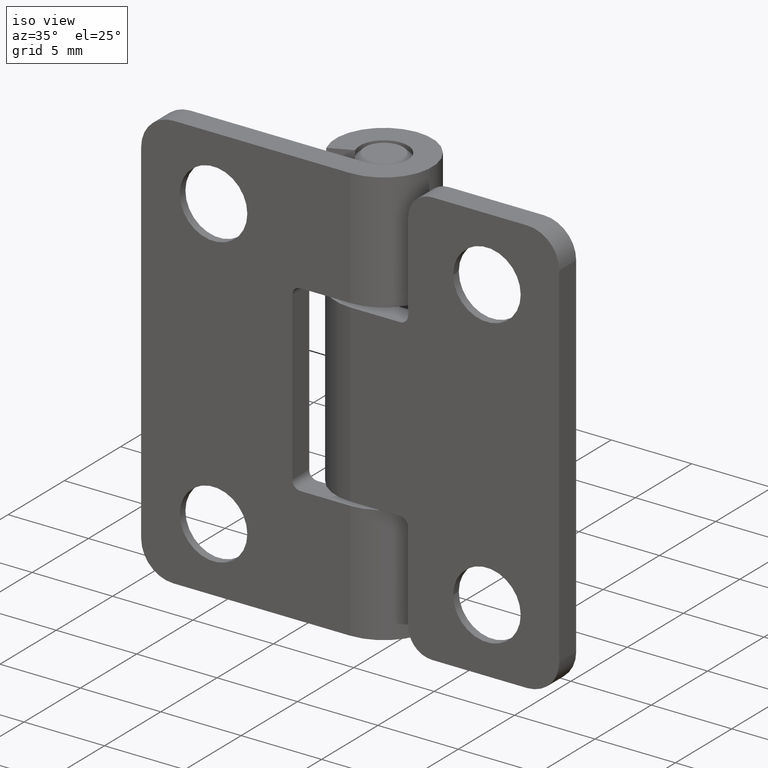
[diagram: clean part render]
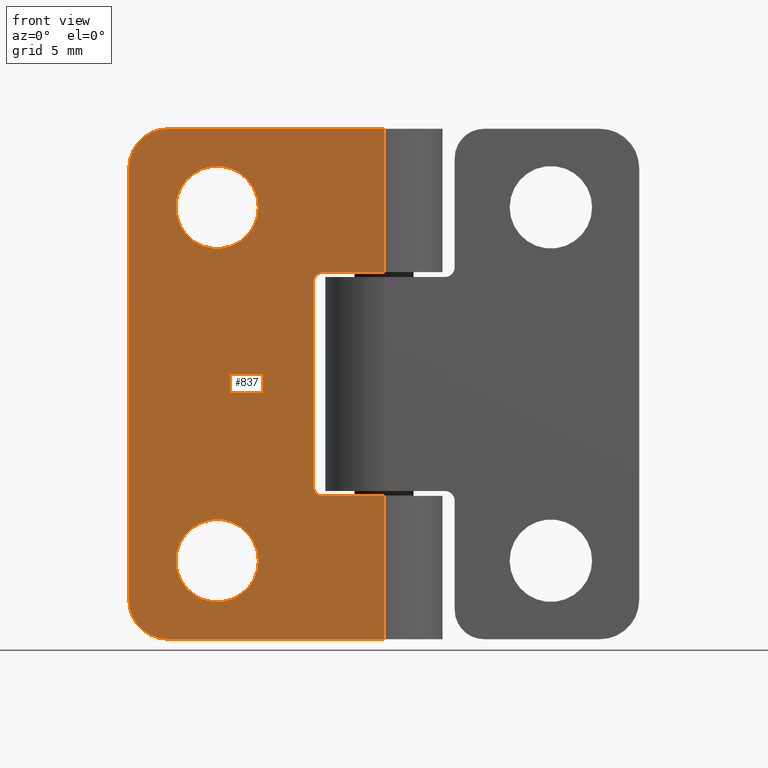
[diagram: tour spotlight — one face highlighted and labeled with its STEP entity id]
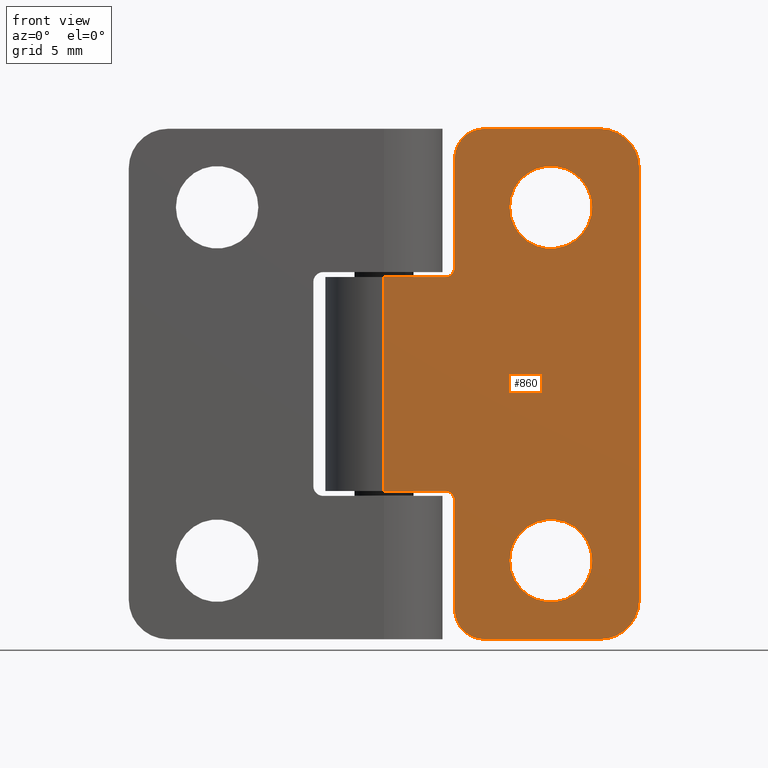
[diagram: tour spotlight — one face highlighted and labeled with its STEP entity id]
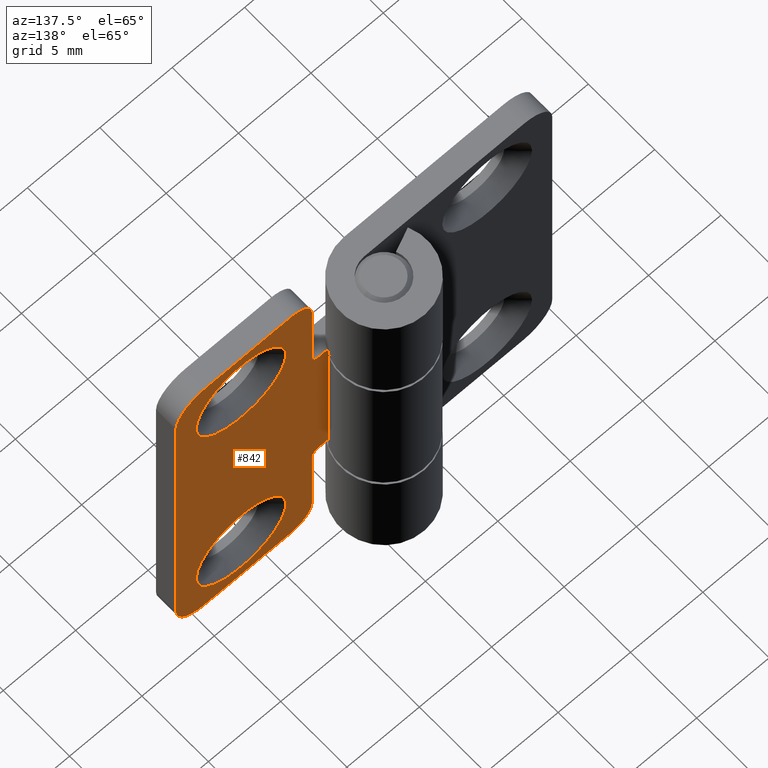
[diagram: tour spotlight — one face highlighted and labeled with its STEP entity id]
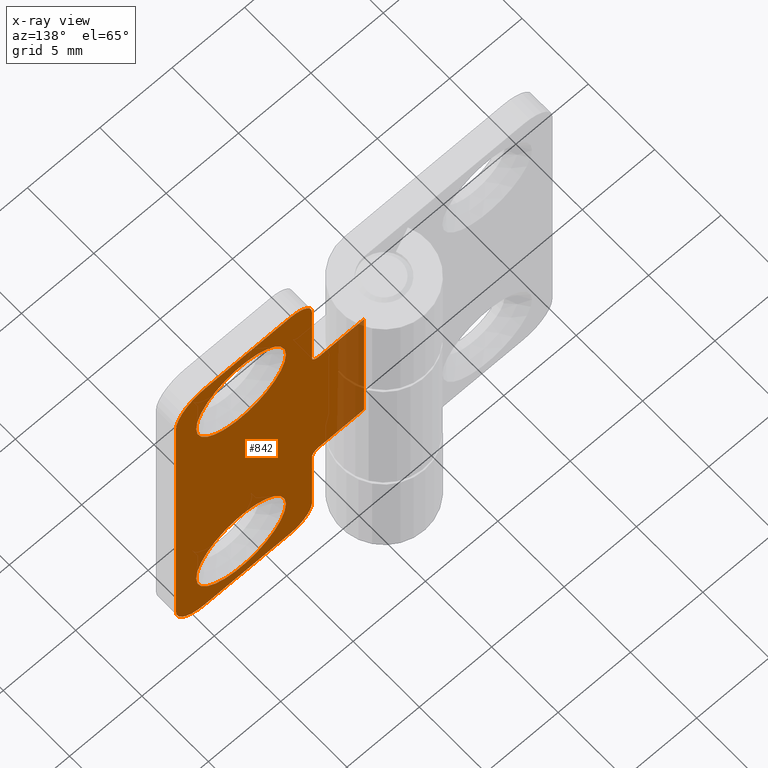
[diagram: x-ray of the same camera — body ghosted, this tour face saturated]
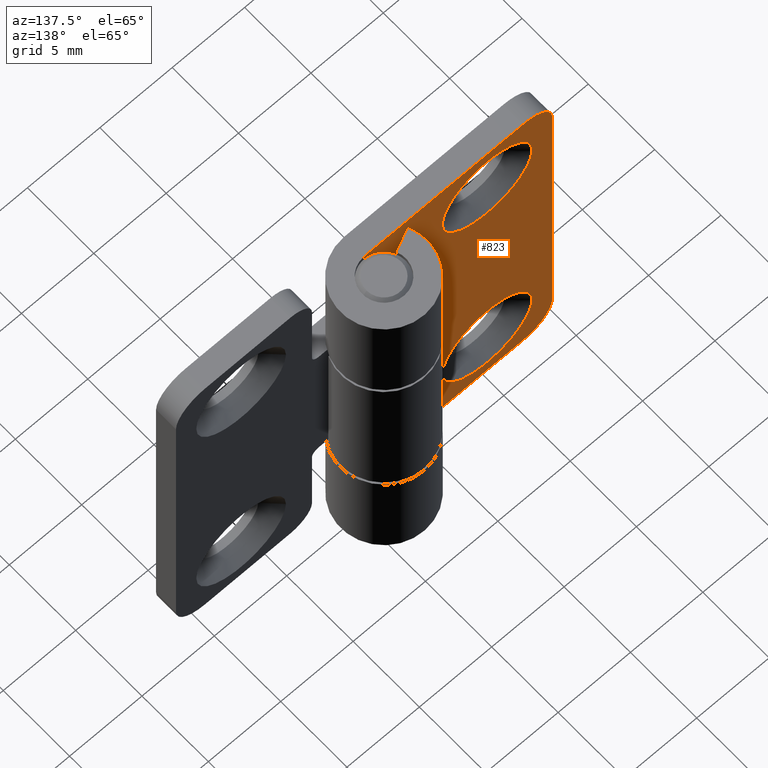
[diagram: tour spotlight — one face highlighted and labeled with its STEP entity id]
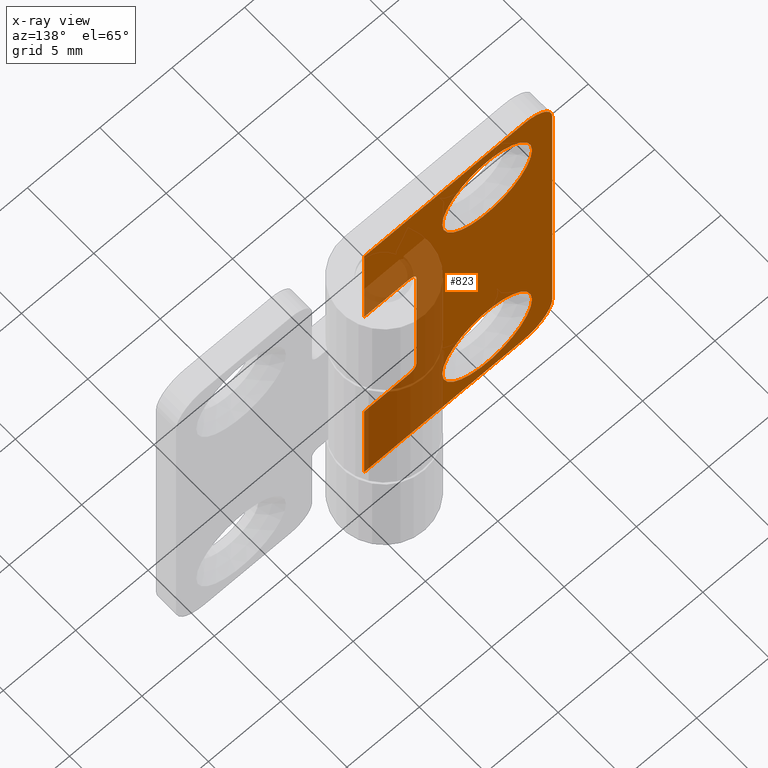
[diagram: x-ray of the same camera — body ghosted, this tour face saturated]
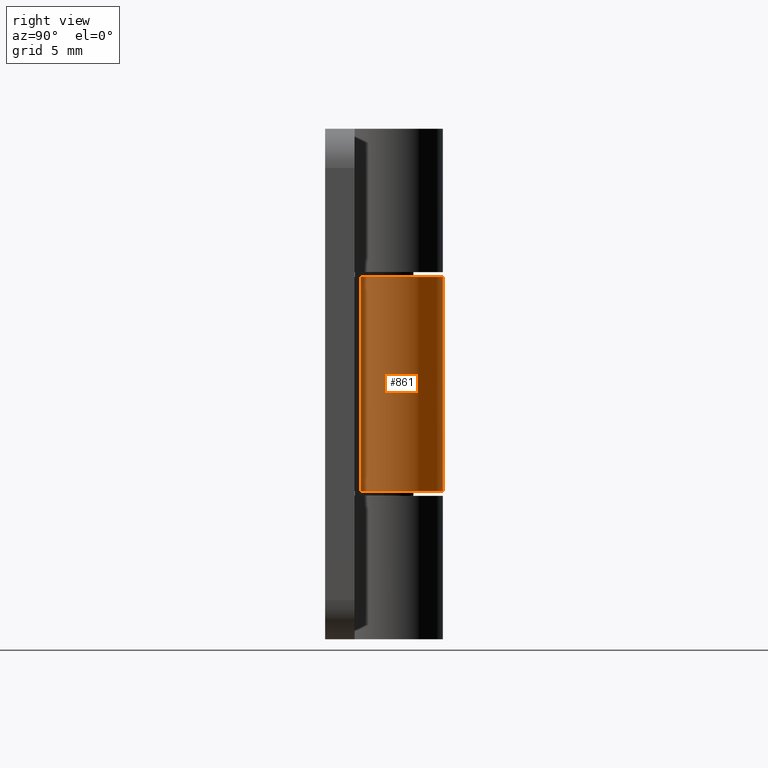
[diagram: tour spotlight — one face highlighted and labeled with its STEP entity id]
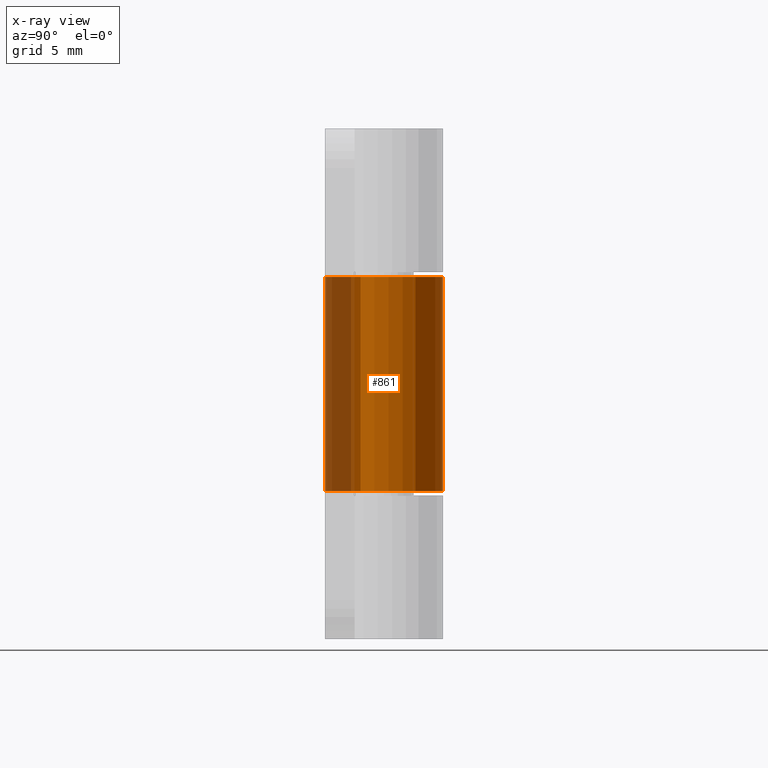
[diagram: x-ray of the same camera — body ghosted, this tour face saturated]
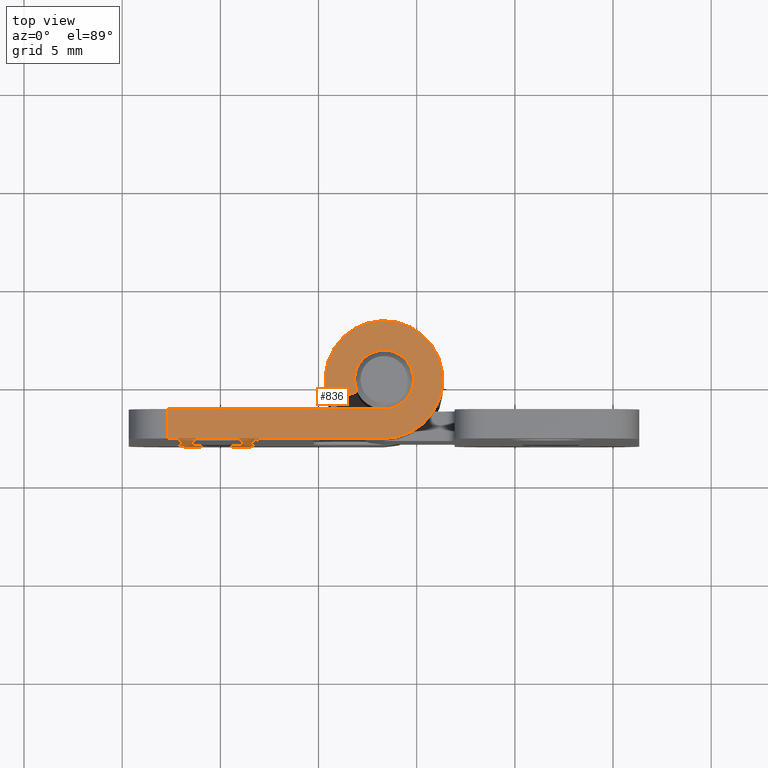
[diagram: tour spotlight — one face highlighted and labeled with its STEP entity id]
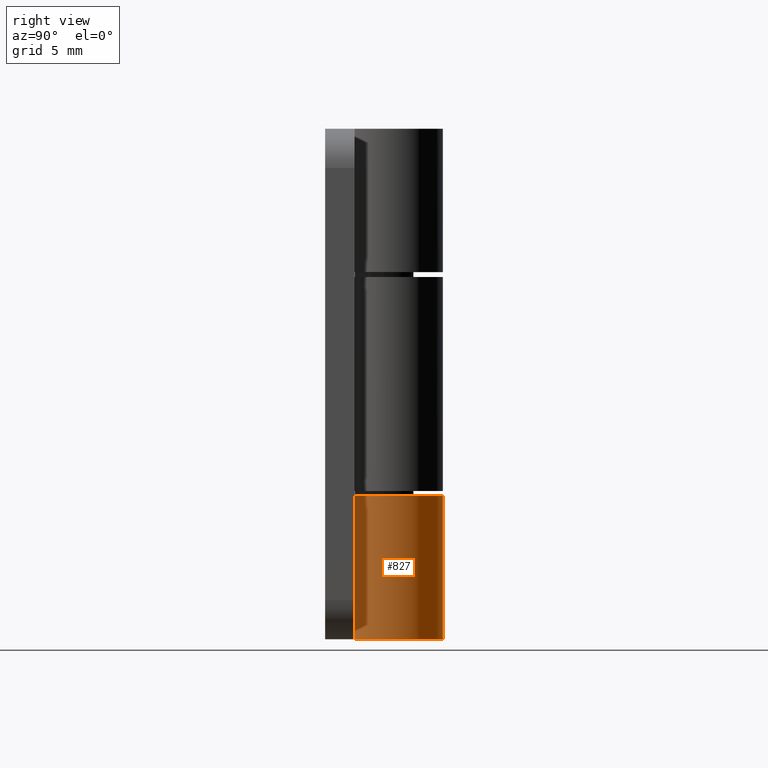
[diagram: tour spotlight — one face highlighted and labeled with its STEP entity id]
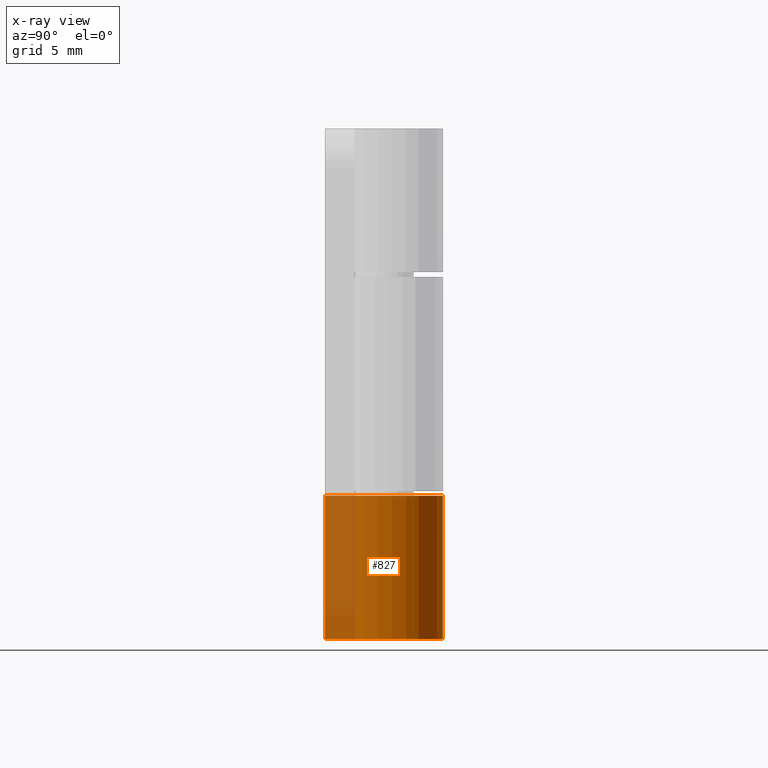
[diagram: x-ray of the same camera — body ghosted, this tour face saturated]
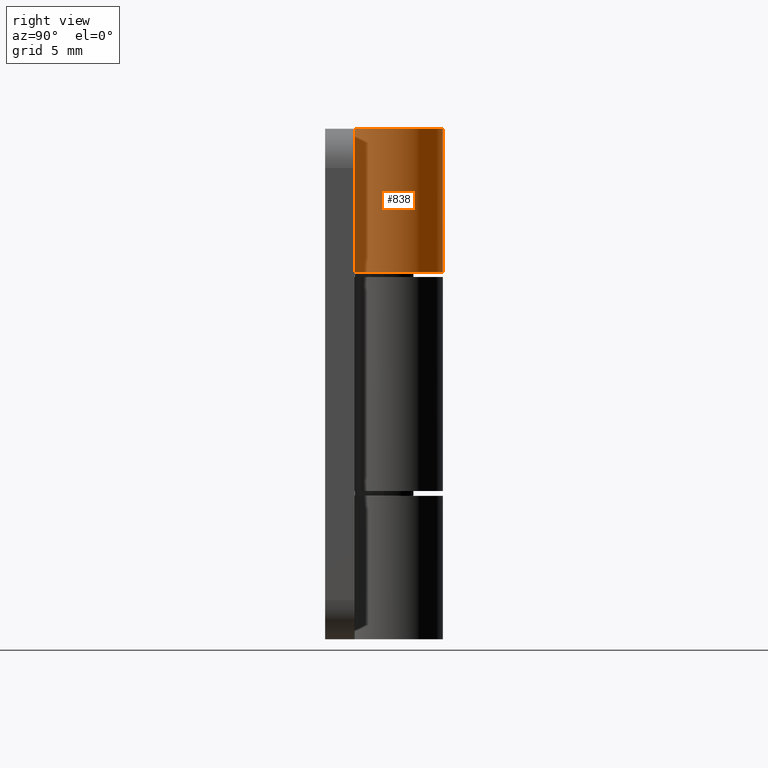
[diagram: tour spotlight — one face highlighted and labeled with its STEP entity id]
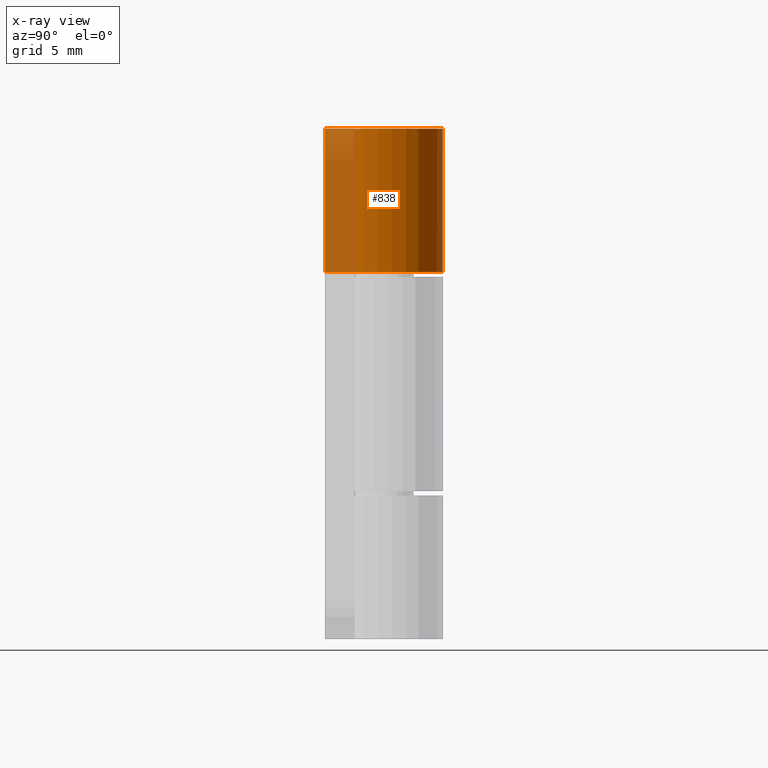
[diagram: x-ray of the same camera — body ghosted, this tour face saturated]
A machine part: a face-by-face anatomy tour. The part has 49 B-rep faces; the first image is the clean iso view, then the 8 largest visible faces are spotlighted one at a time (largest first), each with its STEP entity span.

Face 1 — front view, entity #837. In plain terms, the highlighted planar face has unit normal (0, -1, -0).
Definition (entity closure, byte-faithful):
#53=FACE_BOUND('',#163,.T.);
#54=FACE_BOUND('',#164,.T.);
#74=PLANE('',#912);
#107=FACE_OUTER_BOUND('',#162,.T.);
#162=EDGE_LOOP('',(#657,#658,#659,#660,#661,#662,#663,#664,#665,#666,#667,
#668));
#163=EDGE_LOOP('',(#669));
#164=EDGE_LOOP('',(#670));
#207=LINE('',#1258,#271);
#214=LINE('',#1284,#278);
#223=LINE('',#1312,#287);
#226=LINE('',#1319,#290);
#227=LINE('',#1322,#291);
#234=LINE('',#1354,#298);
#235=LINE('',#1357,#299);
#236=LINE('',#1358,#300);
#271=VECTOR('',#986,3.1);
#278=VECTOR('',#1009,3.1);
#287=VECTOR('',#1034,22.);
#290=VECTOR('',#1043,10.4);
#291=VECTOR('',#1046,7.3);
#298=VECTOR('',#1085,11.);
#299=VECTOR('',#1090,11.);
#300=VECTOR('',#1091,7.3);
#333=CIRCLE('',#872,0.5);
#338=CIRCLE('',#879,0.5);
#342=CIRCLE('',#885,2.);
#346=CIRCLE('',#892,2.);
#351=CIRCLE('',#905,2.1);
#353=CIRCLE('',#909,2.1);
#381=VERTEX_POINT('',#1248);
#382=VERTEX_POINT('',#1249);
#385=VERTEX_POINT('',#1257);
#391=VERTEX_POINT('',#1270);
#392=VERTEX_POINT('',#1272);
#396=VERTEX_POINT('',#1282);
#399=VERTEX_POINT('',#1289);
#400=VERTEX_POINT('',#1291);
#407=VERTEX_POINT('',#1311);
#408=VERTEX_POINT('',#1315);
#409=VERTEX_POINT('',#1321);
#415=VERTEX_POINT('',#1344);
#417=VERTEX_POINT('',#1350);
#418=VERTEX_POINT('',#1353);
#461=EDGE_CURVE('',#381,#382,#333,.T.);
#465=EDGE_CURVE('',#385,#382,#207,.T.);
#472=EDGE_CURVE('',#391,#392,#338,.T.);
#478=EDGE_CURVE('',#391,#396,#214,.T.);
#481=EDGE_CURVE('',#399,#400,#342,.T.);
#492=EDGE_CURVE('',#407,#400,#223,.T.);
#494=EDGE_CURVE('',#407,#408,#346,.T.);
#496=EDGE_CURVE('',#381,#392,#226,.T.);
#497=EDGE_CURVE('',#385,#409,#227,.T.);
#508=EDGE_CURVE('',#415,#415,#351,.T.);
#510=EDGE_CURVE('',#417,#417,#353,.T.);
#511=EDGE_CURVE('',#408,#418,#234,.T.);
#513=EDGE_CURVE('',#409,#399,#235,.T.);
#514=EDGE_CURVE('',#418,#396,#236,.T.);
#657=ORIENTED_EDGE('',*,*,#481,.F.);
#658=ORIENTED_EDGE('',*,*,#513,.F.);
#659=ORIENTED_EDGE('',*,*,#497,.F.);
#660=ORIENTED_EDGE('',*,*,#465,.T.);
#661=ORIENTED_EDGE('',*,*,#461,.F.);
#662=ORIENTED_EDGE('',*,*,#496,.T.);
#663=ORIENTED_EDGE('',*,*,#472,.F.);
#664=ORIENTED_EDGE('',*,*,#478,.T.);
#665=ORIENTED_EDGE('',*,*,#514,.F.);
#666=ORIENTED_EDGE('',*,*,#511,.F.);
#667=ORIENTED_EDGE('',*,*,#494,.F.);
#668=ORIENTED_EDGE('',*,*,#492,.T.);
#669=ORIENTED_EDGE('',*,*,#508,.T.);
#670=ORIENTED_EDGE('',*,*,#510,.T.);
#837=ADVANCED_FACE('',(#107,#53,#54),#74,.T.);
#872=AXIS2_PLACEMENT_3D('',#1250,#978,#979);
#879=AXIS2_PLACEMENT_3D('',#1273,#998,#999);
#885=AXIS2_PLACEMENT_3D('',#1292,#1015,#1016);
#892=AXIS2_PLACEMENT_3D('',#1316,#1038,#1039);
#905=AXIS2_PLACEMENT_3D('',#1345,#1073,#1074);
#909=AXIS2_PLACEMENT_3D('',#1351,#1081,#1082);
#912=AXIS2_PLACEMENT_3D('',#1356,#1088,#1089);
#978=DIRECTION('center_axis',(1.70803542250024E-16,-1.,0.));
#979=DIRECTION('ref_axis',(0.707106781186548,1.20776342975675E-16,0.707106781186548));
#986=DIRECTION('',(1.,1.70803542250024E-16,0.));
#998=DIRECTION('center_axis',(1.70803542250024E-16,-1.,0.));
#999=DIRECTION('ref_axis',(0.707106781186548,1.20776342975675E-16,-0.707106781186548));
#1009=DIRECTION('',(-1.,-1.70803542250024E-16,-4.06112035344191E-16));
#1015=DIRECTION('center_axis',(-1.70803542250024E-16,1.,0.));
#1016=DIRECTION('ref_axis',(0.707106781186548,1.20776342975675E-16,0.707106781186548));
#1034=DIRECTION('',(0.,0.,1.));
#1038=DIRECTION('center_axis',(-1.70803542250024E-16,1.,0.));
#1039=DIRECTION('ref_axis',(0.707106781186548,1.20776342975675E-16,-0.707106781186548));
#1043=DIRECTION('',(4.69709741187566E-16,8.02280876241783E-32,-1.));
#1046=DIRECTION('',(0.,0.,1.));
#1073=DIRECTION('center_axis',(-1.70803542250024E-16,1.,0.));
#1074=DIRECTION('ref_axis',(1.,1.70803542250024E-16,0.));
#1081=DIRECTION('center_axis',(-1.70803542250024E-16,1.,0.));
#1082=DIRECTION('ref_axis',(1.,1.70803542250024E-16,0.));
#1085=DIRECTION('',(-1.,-1.70803542250024E-16,0.));
#1088=DIRECTION('center_axis',(1.70803542250024E-16,-1.,0.));
#1089=DIRECTION('ref_axis',(1.,0.,0.));
#1090=DIRECTION('',(1.,1.70803542250024E-16,0.));
#1091=DIRECTION('',(0.,0.,1.));
#1248=CARTESIAN_POINT('',(3.6,-3.,5.2));
#1249=CARTESIAN_POINT('',(3.1,-3.,5.7));
#1250=CARTESIAN_POINT('Origin',(3.1,-3.,5.2));
#1257=CARTESIAN_POINT('',(3.67394039744206E-16,-3.,5.7));
#1258=CARTESIAN_POINT('',(1.8,-3.,5.7));
#1270=CARTESIAN_POINT('',(3.1,-3.,-5.7));
#1272=CARTESIAN_POINT('',(3.6,-3.,-5.2));
#1273=CARTESIAN_POINT('Origin',(3.1,-3.,-5.2));
#1282=CARTESIAN_POINT('',(3.67394039744206E-16,-3.,-5.7));
#1284=CARTESIAN_POINT('',(-3.66757016784401,-3.,-5.7));
#1289=CARTESIAN_POINT('',(11.,-3.,13.));
#1291=CARTESIAN_POINT('',(13.,-3.,11.));
#1292=CARTESIAN_POINT('Origin',(11.,-3.,11.));
#1311=CARTESIAN_POINT('',(13.,-3.,-11.));
#1312=CARTESIAN_POINT('',(13.,-3.,0.));
#1315=CARTESIAN_POINT('',(11.,-3.,-13.));
#1316=CARTESIAN_POINT('Origin',(11.,-3.,-11.));
#1319=CARTESIAN_POINT('',(3.6,-3.,-2.85));
#1321=CARTESIAN_POINT('',(5.55111512312578E-16,-3.,13.));
#1322=CARTESIAN_POINT('',(3.67394039744206E-16,-3.,0.));
#1344=CARTESIAN_POINT('',(6.4,-3.,-9.));
#1345=CARTESIAN_POINT('Origin',(8.5,-3.,-9.));
#1350=CARTESIAN_POINT('',(6.4,-3.,9.));
#1351=CARTESIAN_POINT('Origin',(8.5,-3.,9.));
#1353=CARTESIAN_POINT('',(5.55111512312578E-16,-3.,-13.));
#1354=CARTESIAN_POINT('',(0.,-3.,-13.));
#1356=CARTESIAN_POINT('Origin',(3.67394039744206E-16,-3.,0.));
#1357=CARTESIAN_POINT('',(0.,-3.,13.));
#1358=CARTESIAN_POINT('',(3.67394039744206E-16,-3.,0.));

Face 2 — front view, entity #860. In plain terms, the highlighted planar face has unit normal (0, -1, -0).
Definition (entity closure, byte-faithful):
#61=FACE_BOUND('',#194,.T.);
#62=FACE_BOUND('',#195,.T.);
#85=PLANE('',#958);
#130=FACE_OUTER_BOUND('',#193,.T.);
#193=EDGE_LOOP('',(#769,#770,#771,#772,#773,#774,#775,#776,#777,#778,#779,
#780,#781,#782));
#194=EDGE_LOOP('',(#783));
#195=EDGE_LOOP('',(#784));
#241=LINE('',#1376,#305);
#252=LINE('',#1414,#316);
#256=LINE('',#1427,#320);
#260=LINE('',#1440,#324);
#263=LINE('',#1452,#327);
#264=LINE('',#1454,#328);
#267=LINE('',#1472,#331);
#268=LINE('',#1474,#332);
#305=VECTOR('',#1110,5.55);
#316=VECTOR('',#1143,5.89999999999999);
#320=VECTOR('',#1157,3.1);
#324=VECTOR('',#1171,5.90000000000001);
#327=VECTOR('',#1184,3.1);
#328=VECTOR('',#1187,5.55);
#331=VECTOR('',#1212,22.);
#332=VECTOR('',#1215,10.9);
#355=CIRCLE('',#917,1.5);
#364=CIRCLE('',#929,1.5);
#365=CIRCLE('',#932,0.5);
#366=CIRCLE('',#934,0.5);
#369=CIRCLE('',#939,2.);
#370=CIRCLE('',#942,2.);
#374=CIRCLE('',#951,2.1);
#376=CIRCLE('',#955,2.1);
#419=VERTEX_POINT('',#1363);
#420=VERTEX_POINT('',#1364);
#424=VERTEX_POINT('',#1374);
#438=VERTEX_POINT('',#1406);
#439=VERTEX_POINT('',#1408);
#440=VERTEX_POINT('',#1412);
#441=VERTEX_POINT('',#1416);
#442=VERTEX_POINT('',#1420);
#443=VERTEX_POINT('',#1421);
#444=VERTEX_POINT('',#1426);
#447=VERTEX_POINT('',#1434);
#448=VERTEX_POINT('',#1436);
#449=VERTEX_POINT('',#1442);
#452=VERTEX_POINT('',#1450);
#454=VERTEX_POINT('',#1461);
#456=VERTEX_POINT('',#1467);
#515=EDGE_CURVE('',#419,#420,#355,.T.);
#521=EDGE_CURVE('',#419,#424,#241,.T.);
#537=EDGE_CURVE('',#438,#439,#364,.T.);
#540=EDGE_CURVE('',#440,#438,#252,.T.);
#541=EDGE_CURVE('',#441,#424,#365,.T.);
#543=EDGE_CURVE('',#442,#443,#366,.T.);
#546=EDGE_CURVE('',#444,#443,#256,.T.);
#551=EDGE_CURVE('',#447,#448,#369,.T.);
#553=EDGE_CURVE('',#420,#447,#260,.T.);
#554=EDGE_CURVE('',#449,#440,#370,.T.);
#559=EDGE_CURVE('',#441,#452,#263,.T.);
#560=EDGE_CURVE('',#442,#439,#264,.T.);
#563=EDGE_CURVE('',#454,#454,#374,.T.);
#565=EDGE_CURVE('',#456,#456,#376,.T.);
#567=EDGE_CURVE('',#449,#448,#267,.T.);
#568=EDGE_CURVE('',#444,#452,#268,.T.);
#769=ORIENTED_EDGE('',*,*,#515,.F.);
#770=ORIENTED_EDGE('',*,*,#521,.T.);
#771=ORIENTED_EDGE('',*,*,#541,.F.);
#772=ORIENTED_EDGE('',*,*,#559,.T.);
#773=ORIENTED_EDGE('',*,*,#568,.F.);
#774=ORIENTED_EDGE('',*,*,#546,.T.);
#775=ORIENTED_EDGE('',*,*,#543,.F.);
#776=ORIENTED_EDGE('',*,*,#560,.T.);
#777=ORIENTED_EDGE('',*,*,#537,.F.);
#778=ORIENTED_EDGE('',*,*,#540,.F.);
#779=ORIENTED_EDGE('',*,*,#554,.F.);
#780=ORIENTED_EDGE('',*,*,#567,.T.);
#781=ORIENTED_EDGE('',*,*,#551,.F.);
#782=ORIENTED_EDGE('',*,*,#553,.F.);
#783=ORIENTED_EDGE('',*,*,#563,.T.);
#784=ORIENTED_EDGE('',*,*,#565,.T.);
#860=ADVANCED_FACE('',(#130,#61,#62),#85,.T.);
#917=AXIS2_PLACEMENT_3D('',#1365,#1100,#1101);
#929=AXIS2_PLACEMENT_3D('',#1409,#1137,#1138);
#932=AXIS2_PLACEMENT_3D('',#1417,#1146,#1147);
#934=AXIS2_PLACEMENT_3D('',#1422,#1151,#1152);
#939=AXIS2_PLACEMENT_3D('',#1437,#1166,#1167);
#942=AXIS2_PLACEMENT_3D('',#1443,#1174,#1175);
#951=AXIS2_PLACEMENT_3D('',#1462,#1197,#1198);
#955=AXIS2_PLACEMENT_3D('',#1468,#1205,#1206);
#958=AXIS2_PLACEMENT_3D('',#1473,#1213,#1214);
#1100=DIRECTION('center_axis',(-1.70803542250024E-16,1.,0.));
#1101=DIRECTION('ref_axis',(-0.707106781186547,-1.20776342975675E-16,0.707106781186548));
#1110=DIRECTION('',(4.69709741187566E-16,8.02280876241783E-32,-1.));
#1137=DIRECTION('center_axis',(-1.70803542250024E-16,1.,0.));
#1138=DIRECTION('ref_axis',(-0.707106781186547,-1.20776342975675E-16,-0.707106781186548));
#1143=DIRECTION('',(-1.,-1.70803542250024E-16,0.));
#1146=DIRECTION('center_axis',(1.70803542250024E-16,-1.,0.));
#1147=DIRECTION('ref_axis',(0.707106781186547,1.20776342975675E-16,-0.707106781186548));
#1151=DIRECTION('center_axis',(1.70803542250024E-16,-1.,0.));
#1152=DIRECTION('ref_axis',(0.707106781186547,1.20776342975675E-16,0.707106781186548));
#1157=DIRECTION('',(1.,1.70803542250024E-16,4.06112035344191E-16));
#1166=DIRECTION('center_axis',(-1.70803542250024E-16,1.,0.));
#1167=DIRECTION('ref_axis',(0.707106781186548,1.20776342975675E-16,0.707106781186548));
#1171=DIRECTION('',(1.,1.70803542250024E-16,0.));
#1174=DIRECTION('center_axis',(-1.70803542250024E-16,1.,0.));
#1175=DIRECTION('ref_axis',(0.707106781186548,1.20776342975675E-16,-0.707106781186548));
#1184=DIRECTION('',(-1.,-1.70803542250024E-16,-5.07640044180239E-16));
#1187=DIRECTION('',(4.69709741187566E-16,8.02280876241783E-32,-1.));
#1197=DIRECTION('center_axis',(-1.70803542250024E-16,1.,0.));
#1198=DIRECTION('ref_axis',(1.,1.70803542250024E-16,0.));
#1205=DIRECTION('center_axis',(-1.70803542250024E-16,1.,0.));
#1206=DIRECTION('ref_axis',(1.,1.70803542250024E-16,0.));
#1212=DIRECTION('',(0.,0.,1.));
#1213=DIRECTION('center_axis',(1.70803542250024E-16,-1.,0.));
#1214=DIRECTION('ref_axis',(1.,0.,0.));
#1215=DIRECTION('',(0.,0.,1.));
#1363=CARTESIAN_POINT('',(3.59999999999999,-3.,11.5));
#1364=CARTESIAN_POINT('',(5.09999999999999,-3.,13.));
#1365=CARTESIAN_POINT('Origin',(5.09999999999999,-3.,11.5));
#1374=CARTESIAN_POINT('',(3.6,-3.,5.95));
#1376=CARTESIAN_POINT('',(3.6,-3.,2.725));
#1406=CARTESIAN_POINT('',(5.10000000000001,-3.,-13.));
#1408=CARTESIAN_POINT('',(3.60000000000001,-3.,-11.5));
#1409=CARTESIAN_POINT('Origin',(5.10000000000001,-3.,-11.5));
#1412=CARTESIAN_POINT('',(11.,-3.,-13.));
#1414=CARTESIAN_POINT('',(0.,-3.,-13.));
#1416=CARTESIAN_POINT('',(3.1,-3.,5.45));
#1417=CARTESIAN_POINT('Origin',(3.1,-3.,5.95));
#1420=CARTESIAN_POINT('',(3.6,-3.,-5.95));
#1421=CARTESIAN_POINT('',(3.1,-3.,-5.45));
#1422=CARTESIAN_POINT('Origin',(3.1,-3.,-5.95));
#1426=CARTESIAN_POINT('',(3.67394039744206E-16,-3.,-5.45));
#1427=CARTESIAN_POINT('',(1.8,-3.,-5.45));
#1434=CARTESIAN_POINT('',(11.,-3.,13.));
#1436=CARTESIAN_POINT('',(13.,-3.,11.));
#1437=CARTESIAN_POINT('Origin',(11.,-3.,11.));
#1440=CARTESIAN_POINT('',(0.,-3.,13.));
#1442=CARTESIAN_POINT('',(13.,-3.,-11.));
#1443=CARTESIAN_POINT('Origin',(11.,-3.,-11.));
#1450=CARTESIAN_POINT('',(3.67394039744206E-16,-3.,5.45));
#1452=CARTESIAN_POINT('',(-3.66757016784402,-3.,5.45));
#1454=CARTESIAN_POINT('',(3.6,-3.,-6.5));
#1461=CARTESIAN_POINT('',(6.4,-3.,-9.));
#1462=CARTESIAN_POINT('Origin',(8.5,-3.,-9.));
#1467=CARTESIAN_POINT('',(6.4,-3.,9.));
#1468=CARTESIAN_POINT('Origin',(8.5,-3.,9.));
#1472=CARTESIAN_POINT('',(13.,-3.,0.));
#1473=CARTESIAN_POINT('Origin',(3.67394039744206E-16,-3.,0.));
#1474=CARTESIAN_POINT('',(3.67394039744206E-16,-3.,0.));

Face 3 — auxiliary view, entity #842. An x-ray twin of the same camera follows (body ghosted, this face saturated) — the face is partly hidden behind the body. In plain terms, the highlighted planar face has unit normal (-0, 1, 0).
Definition (entity closure, byte-faithful):
#55=FACE_BOUND('',#170,.T.);
#56=FACE_BOUND('',#171,.T.);
#77=PLANE('',#920);
#112=FACE_OUTER_BOUND('',#169,.T.);
#169=EDGE_LOOP('',(#689,#690,#691,#692,#693,#694,#695,#696,#697,#698,#699,
#700,#701,#702));
#170=EDGE_LOOP('',(#703));
#171=EDGE_LOOP('',(#704));
#239=LINE('',#1373,#303);
#242=LINE('',#1379,#306);
#243=LINE('',#1383,#307);
#244=LINE('',#1387,#308);
#245=LINE('',#1391,#309);
#246=LINE('',#1395,#310);
#247=LINE('',#1397,#311);
#248=LINE('',#1399,#312);
#303=VECTOR('',#1108,5.55);
#306=VECTOR('',#1113,5.90000000000001);
#307=VECTOR('',#1116,22.);
#308=VECTOR('',#1119,5.89999999999999);
#309=VECTOR('',#1122,5.55);
#310=VECTOR('',#1125,3.1);
#311=VECTOR('',#1126,10.9);
#312=VECTOR('',#1127,3.1);
#356=CIRCLE('',#918,1.5);
#357=CIRCLE('',#921,2.);
#358=CIRCLE('',#922,2.);
#359=CIRCLE('',#923,1.5);
#360=CIRCLE('',#924,0.5);
#361=CIRCLE('',#925,0.5);
#362=CIRCLE('',#926,3.1);
#363=CIRCLE('',#927,3.1);
#421=VERTEX_POINT('',#1366);
#422=VERTEX_POINT('',#1368);
#423=VERTEX_POINT('',#1372);
#425=VERTEX_POINT('',#1378);
#426=VERTEX_POINT('',#1380);
#427=VERTEX_POINT('',#1382);
#428=VERTEX_POINT('',#1384);
#429=VERTEX_POINT('',#1386);
#430=VERTEX_POINT('',#1388);
#431=VERTEX_POINT('',#1390);
#432=VERTEX_POINT('',#1392);
#433=VERTEX_POINT('',#1394);
#434=VERTEX_POINT('',#1396);
#435=VERTEX_POINT('',#1398);
#436=VERTEX_POINT('',#1401);
#437=VERTEX_POINT('',#1403);
#517=EDGE_CURVE('',#421,#422,#356,.T.);
#519=EDGE_CURVE('',#423,#422,#239,.T.);
#522=EDGE_CURVE('',#425,#421,#242,.T.);
#523=EDGE_CURVE('',#426,#425,#357,.T.);
#524=EDGE_CURVE('',#427,#426,#243,.T.);
#525=EDGE_CURVE('',#428,#427,#358,.T.);
#526=EDGE_CURVE('',#429,#428,#244,.T.);
#527=EDGE_CURVE('',#430,#429,#359,.T.);
#528=EDGE_CURVE('',#430,#431,#245,.T.);
#529=EDGE_CURVE('',#432,#431,#360,.T.);
#530=EDGE_CURVE('',#432,#433,#246,.T.);
#531=EDGE_CURVE('',#433,#434,#247,.T.);
#532=EDGE_CURVE('',#434,#435,#248,.T.);
#533=EDGE_CURVE('',#423,#435,#361,.T.);
#534=EDGE_CURVE('',#436,#436,#362,.T.);
#535=EDGE_CURVE('',#437,#437,#363,.T.);
#689=ORIENTED_EDGE('',*,*,#517,.F.);
#690=ORIENTED_EDGE('',*,*,#522,.F.);
#691=ORIENTED_EDGE('',*,*,#523,.F.);
#692=ORIENTED_EDGE('',*,*,#524,.F.);
#693=ORIENTED_EDGE('',*,*,#525,.F.);
#694=ORIENTED_EDGE('',*,*,#526,.F.);
#695=ORIENTED_EDGE('',*,*,#527,.F.);
#696=ORIENTED_EDGE('',*,*,#528,.T.);
#697=ORIENTED_EDGE('',*,*,#529,.F.);
#698=ORIENTED_EDGE('',*,*,#530,.T.);
#699=ORIENTED_EDGE('',*,*,#531,.T.);
#700=ORIENTED_EDGE('',*,*,#532,.T.);
#701=ORIENTED_EDGE('',*,*,#533,.F.);
#702=ORIENTED_EDGE('',*,*,#519,.T.);
#703=ORIENTED_EDGE('',*,*,#534,.T.);
#704=ORIENTED_EDGE('',*,*,#535,.T.);
#842=ADVANCED_FACE('',(#112,#55,#56),#77,.T.);
#918=AXIS2_PLACEMENT_3D('',#1369,#1103,#1104);
#920=AXIS2_PLACEMENT_3D('',#1377,#1111,#1112);
#921=AXIS2_PLACEMENT_3D('',#1381,#1114,#1115);
#922=AXIS2_PLACEMENT_3D('',#1385,#1117,#1118);
#923=AXIS2_PLACEMENT_3D('',#1389,#1120,#1121);
#924=AXIS2_PLACEMENT_3D('',#1393,#1123,#1124);
#925=AXIS2_PLACEMENT_3D('',#1400,#1128,#1129);
#926=AXIS2_PLACEMENT_3D('',#1402,#1130,#1131);
#927=AXIS2_PLACEMENT_3D('',#1404,#1132,#1133);
#1103=DIRECTION('center_axis',(2.56205313375036E-16,-1.,0.));
#1104=DIRECTION('ref_axis',(-0.707106781186547,-1.81164514463512E-16,0.707106781186548));
#1108=DIRECTION('',(-4.69709741187566E-16,-1.20342131436267E-31,1.));
#1111=DIRECTION('center_axis',(-2.56205313375036E-16,1.,0.));
#1112=DIRECTION('ref_axis',(-1.,-2.22044604925031E-16,0.));
#1113=DIRECTION('',(-1.,-2.56205313375036E-16,0.));
#1114=DIRECTION('center_axis',(2.56205313375036E-16,-1.,0.));
#1115=DIRECTION('ref_axis',(0.707106781186548,1.81164514463512E-16,0.707106781186548));
#1116=DIRECTION('',(0.,0.,1.));
#1117=DIRECTION('center_axis',(2.56205313375036E-16,-1.,0.));
#1118=DIRECTION('ref_axis',(0.707106781186548,1.81164514463512E-16,-0.707106781186548));
#1119=DIRECTION('',(1.,2.56205313375036E-16,0.));
#1120=DIRECTION('center_axis',(2.56205313375036E-16,-1.,0.));
#1121=DIRECTION('ref_axis',(-0.707106781186547,-1.81164514463512E-16,-0.707106781186548));
#1122=DIRECTION('',(-4.69709741187566E-16,-1.20342131436267E-31,1.));
#1123=DIRECTION('center_axis',(-2.56205313375036E-16,1.,0.));
#1124=DIRECTION('ref_axis',(0.707106781186547,1.81164514463512E-16,0.707106781186548));
#1125=DIRECTION('',(-1.,-2.56205313375036E-16,-4.06112035344191E-16));
#1126=DIRECTION('',(0.,0.,1.));
#1127=DIRECTION('',(1.,2.56205313375036E-16,5.07640044180239E-16));
#1128=DIRECTION('center_axis',(-2.56205313375036E-16,1.,0.));
#1129=DIRECTION('ref_axis',(0.707106781186547,1.81164514463512E-16,-0.707106781186548));
#1130=DIRECTION('center_axis',(2.56205313375036E-16,-1.,0.));
#1131=DIRECTION('ref_axis',(1.,2.56205313375036E-16,0.));
#1132=DIRECTION('center_axis',(2.56205313375036E-16,-1.,0.));
#1133=DIRECTION('ref_axis',(1.,2.56205313375036E-16,0.));
#1366=CARTESIAN_POINT('',(5.09999999999999,-1.5,13.));
#1368=CARTESIAN_POINT('',(3.59999999999999,-1.5,11.5));
#1369=CARTESIAN_POINT('Origin',(5.09999999999999,-1.5,11.5));
#1372=CARTESIAN_POINT('',(3.6,-1.5,5.95));
#1373=CARTESIAN_POINT('',(3.6,-1.5,2.725));
#1377=CARTESIAN_POINT('Origin',(13.,-1.5,0.));
#1378=CARTESIAN_POINT('',(11.,-1.5,13.));
#1379=CARTESIAN_POINT('',(13.,-1.5,13.));
#1380=CARTESIAN_POINT('',(13.,-1.5,11.));
#1381=CARTESIAN_POINT('Origin',(11.,-1.5,11.));
#1382=CARTESIAN_POINT('',(13.,-1.5,-11.));
#1383=CARTESIAN_POINT('',(13.,-1.5,0.));
#1384=CARTESIAN_POINT('',(11.,-1.5,-13.));
#1385=CARTESIAN_POINT('Origin',(11.,-1.5,-11.));
#1386=CARTESIAN_POINT('',(5.10000000000001,-1.5,-13.));
#1387=CARTESIAN_POINT('',(13.,-1.5,-13.));
#1388=CARTESIAN_POINT('',(3.60000000000001,-1.5,-11.5));
#1389=CARTESIAN_POINT('Origin',(5.10000000000001,-1.5,-11.5));
#1390=CARTESIAN_POINT('',(3.6,-1.5,-5.95));
#1391=CARTESIAN_POINT('',(3.6,-1.5,-6.5));
#1392=CARTESIAN_POINT('',(3.1,-1.5,-5.45));
#1393=CARTESIAN_POINT('Origin',(3.1,-1.5,-5.95));
#1394=CARTESIAN_POINT('',(3.67394039744206E-16,-1.5,-5.45));
#1395=CARTESIAN_POINT('',(8.3,-1.5,-5.45));
#1396=CARTESIAN_POINT('',(3.67394039744206E-16,-1.5,5.45));
#1397=CARTESIAN_POINT('',(3.67394039744206E-16,-1.5,0.));
#1398=CARTESIAN_POINT('',(3.1,-1.5,5.45));
#1399=CARTESIAN_POINT('',(2.83242983215598,-1.5,5.45));
#1400=CARTESIAN_POINT('Origin',(3.1,-1.5,5.95));
#1401=CARTESIAN_POINT('',(5.4,-1.5,9.));
#1402=CARTESIAN_POINT('Origin',(8.5,-1.5,9.));
#1403=CARTESIAN_POINT('',(5.4,-1.5,-9.));
#1404=CARTESIAN_POINT('Origin',(8.5,-1.5,-9.));

Face 4 — auxiliary view, entity #823. An x-ray twin of the same camera follows (body ghosted, this face saturated) — the face is partly hidden behind the body. In plain terms, the highlighted planar face has unit normal (-0, 1, 0).
Definition (entity closure, byte-faithful):
#47=FACE_BOUND('',#143,.T.);
#48=FACE_BOUND('',#144,.T.);
#68=PLANE('',#886);
#93=FACE_OUTER_BOUND('',#142,.T.);
#142=EDGE_LOOP('',(#597,#598,#599,#600,#601,#602,#603,#604,#605,#606,#607,
#608));
#143=EDGE_LOOP('',(#609));
#144=EDGE_LOOP('',(#610));
#209=LINE('',#1265,#273);
#212=LINE('',#1277,#276);
#217=LINE('',#1296,#281);
#218=LINE('',#1300,#282);
#219=LINE('',#1301,#283);
#220=LINE('',#1302,#284);
#221=LINE('',#1304,#285);
#222=LINE('',#1305,#286);
#273=VECTOR('',#992,3.1);
#276=VECTOR('',#1003,3.1);
#281=VECTOR('',#1020,22.);
#282=VECTOR('',#1023,11.);
#283=VECTOR('',#1024,7.3);
#284=VECTOR('',#1025,10.4);
#285=VECTOR('',#1026,7.3);
#286=VECTOR('',#1027,11.);
#334=CIRCLE('',#873,0.5);
#337=CIRCLE('',#878,0.5);
#341=CIRCLE('',#884,2.);
#343=CIRCLE('',#887,2.);
#344=CIRCLE('',#888,3.1);
#345=CIRCLE('',#889,3.1);
#383=VERTEX_POINT('',#1251);
#384=VERTEX_POINT('',#1253);
#388=VERTEX_POINT('',#1263);
#389=VERTEX_POINT('',#1267);
#390=VERTEX_POINT('',#1268);
#393=VERTEX_POINT('',#1276);
#397=VERTEX_POINT('',#1286);
#398=VERTEX_POINT('',#1287);
#401=VERTEX_POINT('',#1295);
#402=VERTEX_POINT('',#1297);
#403=VERTEX_POINT('',#1299);
#404=VERTEX_POINT('',#1303);
#405=VERTEX_POINT('',#1306);
#406=VERTEX_POINT('',#1308);
#463=EDGE_CURVE('',#383,#384,#334,.T.);
#469=EDGE_CURVE('',#383,#388,#209,.T.);
#470=EDGE_CURVE('',#389,#390,#337,.T.);
#474=EDGE_CURVE('',#393,#390,#212,.T.);
#479=EDGE_CURVE('',#397,#398,#341,.T.);
#483=EDGE_CURVE('',#401,#397,#217,.T.);
#484=EDGE_CURVE('',#402,#401,#343,.T.);
#485=EDGE_CURVE('',#403,#402,#218,.T.);
#486=EDGE_CURVE('',#403,#393,#219,.T.);
#487=EDGE_CURVE('',#389,#384,#220,.T.);
#488=EDGE_CURVE('',#388,#404,#221,.T.);
#489=EDGE_CURVE('',#398,#404,#222,.T.);
#490=EDGE_CURVE('',#405,#405,#344,.T.);
#491=EDGE_CURVE('',#406,#406,#345,.T.);
#597=ORIENTED_EDGE('',*,*,#479,.F.);
#598=ORIENTED_EDGE('',*,*,#483,.F.);
#599=ORIENTED_EDGE('',*,*,#484,.F.);
#600=ORIENTED_EDGE('',*,*,#485,.F.);
#601=ORIENTED_EDGE('',*,*,#486,.T.);
#602=ORIENTED_EDGE('',*,*,#474,.T.);
#603=ORIENTED_EDGE('',*,*,#470,.F.);
#604=ORIENTED_EDGE('',*,*,#487,.T.);
#605=ORIENTED_EDGE('',*,*,#463,.F.);
#606=ORIENTED_EDGE('',*,*,#469,.T.);
#607=ORIENTED_EDGE('',*,*,#488,.T.);
#608=ORIENTED_EDGE('',*,*,#489,.F.);
#609=ORIENTED_EDGE('',*,*,#490,.T.);
#610=ORIENTED_EDGE('',*,*,#491,.T.);
#823=ADVANCED_FACE('',(#93,#47,#48),#68,.T.);
#873=AXIS2_PLACEMENT_3D('',#1254,#981,#982);
#878=AXIS2_PLACEMENT_3D('',#1269,#995,#996);
#884=AXIS2_PLACEMENT_3D('',#1288,#1012,#1013);
#886=AXIS2_PLACEMENT_3D('',#1294,#1018,#1019);
#887=AXIS2_PLACEMENT_3D('',#1298,#1021,#1022);
#888=AXIS2_PLACEMENT_3D('',#1307,#1028,#1029);
#889=AXIS2_PLACEMENT_3D('',#1309,#1030,#1031);
#981=DIRECTION('center_axis',(-2.56205313375036E-16,1.,0.));
#982=DIRECTION('ref_axis',(0.707106781186548,1.81164514463512E-16,0.707106781186548));
#992=DIRECTION('',(-1.,-2.56205313375036E-16,0.));
#995=DIRECTION('center_axis',(-2.56205313375036E-16,1.,0.));
#996=DIRECTION('ref_axis',(0.707106781186548,1.81164514463512E-16,-0.707106781186548));
#1003=DIRECTION('',(1.,2.56205313375036E-16,4.06112035344191E-16));
#1012=DIRECTION('center_axis',(2.56205313375036E-16,-1.,0.));
#1013=DIRECTION('ref_axis',(0.707106781186548,1.81164514463512E-16,0.707106781186548));
#1018=DIRECTION('center_axis',(-2.56205313375036E-16,1.,0.));
#1019=DIRECTION('ref_axis',(-1.,-2.22044604925031E-16,0.));
#1020=DIRECTION('',(0.,0.,1.));
#1021=DIRECTION('center_axis',(2.56205313375036E-16,-1.,0.));
#1022=DIRECTION('ref_axis',(0.707106781186548,1.81164514463512E-16,-0.707106781186548));
#1023=DIRECTION('',(1.,2.56205313375036E-16,0.));
#1024=DIRECTION('',(0.,0.,1.));
#1025=DIRECTION('',(-4.69709741187566E-16,-1.20342131436267E-31,1.));
#1026=DIRECTION('',(0.,0.,1.));
#1027=DIRECTION('',(-1.,-2.56205313375036E-16,0.));
#1028=DIRECTION('center_axis',(2.56205313375036E-16,-1.,0.));
#1029=DIRECTION('ref_axis',(1.,2.56205313375036E-16,0.));
#1030=DIRECTION('center_axis',(2.56205313375036E-16,-1.,0.));
#1031=DIRECTION('ref_axis',(1.,2.56205313375036E-16,0.));
#1251=CARTESIAN_POINT('',(3.1,-1.5,5.7));
#1253=CARTESIAN_POINT('',(3.6,-1.5,5.2));
#1254=CARTESIAN_POINT('Origin',(3.1,-1.5,5.2));
#1263=CARTESIAN_POINT('',(3.67394039744206E-16,-1.5,5.7));
#1265=CARTESIAN_POINT('',(8.3,-1.5,5.7));
#1267=CARTESIAN_POINT('',(3.6,-1.5,-5.2));
#1268=CARTESIAN_POINT('',(3.1,-1.5,-5.7));
#1269=CARTESIAN_POINT('Origin',(3.1,-1.5,-5.2));
#1276=CARTESIAN_POINT('',(3.67394039744206E-16,-1.5,-5.7));
#1277=CARTESIAN_POINT('',(2.83242983215599,-1.5,-5.7));
#1286=CARTESIAN_POINT('',(13.,-1.5,11.));
#1287=CARTESIAN_POINT('',(11.,-1.5,13.));
#1288=CARTESIAN_POINT('Origin',(11.,-1.5,11.));
#1294=CARTESIAN_POINT('Origin',(13.,-1.5,0.));
#1295=CARTESIAN_POINT('',(13.,-1.5,-11.));
#1296=CARTESIAN_POINT('',(13.,-1.5,0.));
#1297=CARTESIAN_POINT('',(11.,-1.5,-13.));
#1298=CARTESIAN_POINT('Origin',(11.,-1.5,-11.));
#1299=CARTESIAN_POINT('',(5.55111512312578E-16,-1.5,-13.));
#1300=CARTESIAN_POINT('',(13.,-1.5,-13.));
#1301=CARTESIAN_POINT('',(3.67394039744206E-16,-1.5,0.));
#1302=CARTESIAN_POINT('',(3.6,-1.5,-2.85));
#1303=CARTESIAN_POINT('',(5.55111512312578E-16,-1.5,13.));
#1304=CARTESIAN_POINT('',(3.67394039744206E-16,-1.5,0.));
#1305=CARTESIAN_POINT('',(13.,-1.5,13.));
#1306=CARTESIAN_POINT('',(5.4,-1.5,9.));
#1307=CARTESIAN_POINT('Origin',(8.5,-1.5,9.));
#1308=CARTESIAN_POINT('',(5.4,-1.5,-9.));
#1309=CARTESIAN_POINT('Origin',(8.5,-1.5,-9.));

Face 5 — right view, entity #861. An x-ray twin of the same camera follows (body ghosted, this face saturated) — the face is partly hidden behind the body. In plain terms, the highlighted cylindrical surface (partial cylindrical patch) has radius 3 mm, axis along (-0, -0, 1).
Definition (entity closure, byte-faithful):
#131=FACE_OUTER_BOUND('',#196,.T.);
#196=EDGE_LOOP('',(#785,#786,#787,#788));
#266=LINE('',#1470,#330);
#268=LINE('',#1474,#332);
#330=VECTOR('',#1209,10.9);
#332=VECTOR('',#1215,10.9);
#367=CIRCLE('',#936,3.);
#372=CIRCLE('',#945,3.);
#444=VERTEX_POINT('',#1426);
#445=VERTEX_POINT('',#1428);
#451=VERTEX_POINT('',#1448);
#452=VERTEX_POINT('',#1450);
#547=EDGE_CURVE('',#445,#444,#367,.T.);
#558=EDGE_CURVE('',#452,#451,#372,.T.);
#566=EDGE_CURVE('',#451,#445,#266,.T.);
#568=EDGE_CURVE('',#444,#452,#268,.T.);
#785=ORIENTED_EDGE('',*,*,#558,.T.);
#786=ORIENTED_EDGE('',*,*,#566,.T.);
#787=ORIENTED_EDGE('',*,*,#547,.T.);
#788=ORIENTED_EDGE('',*,*,#568,.T.);
#816=CYLINDRICAL_SURFACE('',#959,3.);
#861=ADVANCED_FACE('',(#131),#816,.T.);
#936=AXIS2_PLACEMENT_3D('',#1429,#1158,#1159);
#945=AXIS2_PLACEMENT_3D('',#1451,#1182,#1183);
#959=AXIS2_PLACEMENT_3D('',#1475,#1216,#1217);
#1158=DIRECTION('center_axis',(-4.06112035344191E-16,-7.51458220360844E-32,
1.));
#1159=DIRECTION('ref_axis',(0.916515138991168,-0.4,3.72207828519467E-16));
#1182=DIRECTION('center_axis',(5.07640044180239E-16,9.39322775451055E-32,
-1.));
#1183=DIRECTION('ref_axis',(0.916515138991168,-0.4,4.65259785649335E-16));
#1209=DIRECTION('',(0.,0.,-1.));
#1215=DIRECTION('',(0.,0.,1.));
#1216=DIRECTION('center_axis',(0.,0.,1.));
#1217=DIRECTION('ref_axis',(-0.547722557505166,0.836660026534076,0.));
#1426=CARTESIAN_POINT('',(3.67394039744206E-16,-3.,-5.45));
#1428=CARTESIAN_POINT('',(2.7495454169735,-1.2,-5.45));
#1429=CARTESIAN_POINT('Origin',(0.,0.,-5.45));
#1448=CARTESIAN_POINT('',(2.7495454169735,-1.2,5.45));
#1450=CARTESIAN_POINT('',(3.67394039744206E-16,-3.,5.45));
#1451=CARTESIAN_POINT('Origin',(0.,0.,5.45));
#1470=CARTESIAN_POINT('',(2.7495454169735,-1.2,0.));
#1474=CARTESIAN_POINT('',(3.67394039744206E-16,-3.,0.));
#1475=CARTESIAN_POINT('Origin',(0.,0.,0.));

Face 6 — top view, entity #836. In plain terms, the highlighted planar face has unit normal (0, 0, -1).
Definition (entity closure, byte-faithful):
#73=PLANE('',#910);
#106=FACE_OUTER_BOUND('',#161,.T.);
#161=EDGE_LOOP('',(#651,#652,#653,#654,#655,#656));
#218=LINE('',#1300,#282);
#225=LINE('',#1317,#289);
#232=LINE('',#1338,#296);
#234=LINE('',#1354,#298);
#282=VECTOR('',#1023,11.);
#289=VECTOR('',#1040,1.5);
#296=VECTOR('',#1065,1.5);
#298=VECTOR('',#1085,11.);
#349=CIRCLE('',#899,1.5);
#354=CIRCLE('',#911,3.);
#402=VERTEX_POINT('',#1297);
#403=VERTEX_POINT('',#1299);
#408=VERTEX_POINT('',#1315);
#412=VERTEX_POINT('',#1331);
#413=VERTEX_POINT('',#1337);
#418=VERTEX_POINT('',#1353);
#485=EDGE_CURVE('',#403,#402,#218,.T.);
#495=EDGE_CURVE('',#408,#402,#225,.T.);
#502=EDGE_CURVE('',#412,#403,#349,.T.);
#505=EDGE_CURVE('',#413,#412,#232,.T.);
#511=EDGE_CURVE('',#408,#418,#234,.T.);
#512=EDGE_CURVE('',#418,#413,#354,.T.);
#651=ORIENTED_EDGE('',*,*,#495,.F.);
#652=ORIENTED_EDGE('',*,*,#511,.T.);
#653=ORIENTED_EDGE('',*,*,#512,.T.);
#654=ORIENTED_EDGE('',*,*,#505,.T.);
#655=ORIENTED_EDGE('',*,*,#502,.T.);
#656=ORIENTED_EDGE('',*,*,#485,.T.);
#836=ADVANCED_FACE('',(#106),#73,.F.);
#899=AXIS2_PLACEMENT_3D('',#1332,#1057,#1058);
#910=AXIS2_PLACEMENT_3D('',#1352,#1083,#1084);
#911=AXIS2_PLACEMENT_3D('',#1355,#1086,#1087);
#1023=DIRECTION('',(1.,2.56205313375036E-16,0.));
#1040=DIRECTION('',(0.,1.,0.));
#1057=DIRECTION('center_axis',(0.,0.,1.));
#1058=DIRECTION('ref_axis',(-0.916515138991168,0.4,0.));
#1065=DIRECTION('',(-0.916515138991168,0.4,0.));
#1083=DIRECTION('center_axis',(0.,0.,1.));
#1084=DIRECTION('ref_axis',(1.,0.,0.));
#1085=DIRECTION('',(-1.,-1.70803542250024E-16,0.));
#1086=DIRECTION('center_axis',(0.,0.,-1.));
#1087=DIRECTION('ref_axis',(0.916515138991168,-0.4,0.));
#1297=CARTESIAN_POINT('',(11.,-1.5,-13.));
#1299=CARTESIAN_POINT('',(5.55111512312578E-16,-1.5,-13.));
#1300=CARTESIAN_POINT('',(13.,-1.5,-13.));
#1315=CARTESIAN_POINT('',(11.,-3.,-13.));
#1317=CARTESIAN_POINT('',(11.,-1.5,-13.));
#1331=CARTESIAN_POINT('',(1.37477270848675,-0.6,-13.));
#1332=CARTESIAN_POINT('Origin',(0.,0.,-13.));
#1337=CARTESIAN_POINT('',(2.7495454169735,-1.2,-13.));
#1338=CARTESIAN_POINT('',(1.37477270848675,-0.6,-13.));
#1352=CARTESIAN_POINT('Origin',(5.,-2.77555756156289E-16,-13.));
#1353=CARTESIAN_POINT('',(5.55111512312578E-16,-3.,-13.));
#1354=CARTESIAN_POINT('',(0.,-3.,-13.));
#1355=CARTESIAN_POINT('Origin',(0.,0.,-13.));

Face 7 — right view, entity #827. An x-ray twin of the same camera follows (body ghosted, this face saturated) — the face is partly hidden behind the body. In plain terms, the highlighted cylindrical surface (partial cylindrical patch) has radius 3 mm, axis along (0, 0, -1).
Definition (entity closure, byte-faithful):
#97=FACE_OUTER_BOUND('',#148,.T.);
#148=EDGE_LOOP('',(#623,#624,#625,#626));
#227=LINE('',#1322,#291);
#228=LINE('',#1325,#292);
#291=VECTOR('',#1046,7.3);
#292=VECTOR('',#1049,7.3);
#335=CIRCLE('',#875,3.);
#347=CIRCLE('',#895,3.);
#385=VERTEX_POINT('',#1257);
#386=VERTEX_POINT('',#1259);
#409=VERTEX_POINT('',#1321);
#410=VERTEX_POINT('',#1323);
#466=EDGE_CURVE('',#386,#385,#335,.T.);
#497=EDGE_CURVE('',#385,#409,#227,.T.);
#498=EDGE_CURVE('',#410,#409,#347,.T.);
#499=EDGE_CURVE('',#410,#386,#228,.T.);
#623=ORIENTED_EDGE('',*,*,#466,.T.);
#624=ORIENTED_EDGE('',*,*,#497,.T.);
#625=ORIENTED_EDGE('',*,*,#498,.F.);
#626=ORIENTED_EDGE('',*,*,#499,.T.);
#801=CYLINDRICAL_SURFACE('',#894,3.);
#827=ADVANCED_FACE('',(#97),#801,.T.);
#875=AXIS2_PLACEMENT_3D('',#1260,#987,#988);
#894=AXIS2_PLACEMENT_3D('',#1320,#1044,#1045);
#895=AXIS2_PLACEMENT_3D('',#1324,#1047,#1048);
#987=DIRECTION('center_axis',(0.,0.,1.));
#988=DIRECTION('ref_axis',(0.916515138991168,-0.4,0.));
#1044=DIRECTION('center_axis',(0.,0.,1.));
#1045=DIRECTION('ref_axis',(-0.547722557505166,0.836660026534076,0.));
#1046=DIRECTION('',(0.,0.,1.));
#1047=DIRECTION('center_axis',(0.,0.,1.));
#1048=DIRECTION('ref_axis',(0.916515138991168,-0.4,0.));
#1049=DIRECTION('',(0.,0.,-1.));
#1257=CARTESIAN_POINT('',(3.67394039744206E-16,-3.,5.7));
#1259=CARTESIAN_POINT('',(2.7495454169735,-1.2,5.7));
#1260=CARTESIAN_POINT('Origin',(0.,0.,5.7));
#1320=CARTESIAN_POINT('Origin',(0.,0.,0.));
#1321=CARTESIAN_POINT('',(5.55111512312578E-16,-3.,13.));
#1322=CARTESIAN_POINT('',(3.67394039744206E-16,-3.,0.));
#1323=CARTESIAN_POINT('',(2.7495454169735,-1.2,13.));
#1324=CARTESIAN_POINT('Origin',(0.,0.,13.));
#1325=CARTESIAN_POINT('',(2.7495454169735,-1.2,0.));

Face 8 — right view, entity #838. An x-ray twin of the same camera follows (body ghosted, this face saturated) — the face is partly hidden behind the body. In plain terms, the highlighted cylindrical surface (partial cylindrical patch) has radius 3 mm, axis along (0, 0, -1).
Definition (entity closure, byte-faithful):
#108=FACE_OUTER_BOUND('',#165,.T.);
#165=EDGE_LOOP('',(#671,#672,#673,#674));
#233=LINE('',#1339,#297);
#236=LINE('',#1358,#300);
#297=VECTOR('',#1066,7.3);
#300=VECTOR('',#1091,7.3);
#340=CIRCLE('',#882,3.);
#354=CIRCLE('',#911,3.);
#395=VERTEX_POINT('',#1280);
#396=VERTEX_POINT('',#1282);
#413=VERTEX_POINT('',#1337);
#418=VERTEX_POINT('',#1353);
#477=EDGE_CURVE('',#396,#395,#340,.T.);
#506=EDGE_CURVE('',#395,#413,#233,.T.);
#512=EDGE_CURVE('',#418,#413,#354,.T.);
#514=EDGE_CURVE('',#418,#396,#236,.T.);
#671=ORIENTED_EDGE('',*,*,#477,.T.);
#672=ORIENTED_EDGE('',*,*,#506,.T.);
#673=ORIENTED_EDGE('',*,*,#512,.F.);
#674=ORIENTED_EDGE('',*,*,#514,.T.);
#806=CYLINDRICAL_SURFACE('',#913,3.);
#838=ADVANCED_FACE('',(#108),#806,.T.);
#882=AXIS2_PLACEMENT_3D('',#1283,#1007,#1008);
#911=AXIS2_PLACEMENT_3D('',#1355,#1086,#1087);
#913=AXIS2_PLACEMENT_3D('',#1359,#1092,#1093);
#1007=DIRECTION('center_axis',(4.06112035344191E-16,7.51458220360844E-32,
-1.));
#1008=DIRECTION('ref_axis',(0.916515138991168,-0.4,3.72207828519467E-16));
#1066=DIRECTION('',(0.,0.,-1.));
#1086=DIRECTION('center_axis',(0.,0.,-1.));
#1087=DIRECTION('ref_axis',(0.916515138991168,-0.4,0.));
#1091=DIRECTION('',(0.,0.,1.));
#1092=DIRECTION('center_axis',(0.,0.,1.));
#1093=DIRECTION('ref_axis',(-0.547722557505166,0.836660026534076,0.));
#1280=CARTESIAN_POINT('',(2.7495454169735,-1.2,-5.7));
#1282=CARTESIAN_POINT('',(3.67394039744206E-16,-3.,-5.7));
#1283=CARTESIAN_POINT('Origin',(0.,0.,-5.7));
#1337=CARTESIAN_POINT('',(2.7495454169735,-1.2,-13.));
#1339=CARTESIAN_POINT('',(2.7495454169735,-1.2,0.));
#1353=CARTESIAN_POINT('',(5.55111512312578E-16,-3.,-13.));
#1355=CARTESIAN_POINT('Origin',(0.,0.,-13.));
#1358=CARTESIAN_POINT('',(3.67394039744206E-16,-3.,0.));
#1359=CARTESIAN_POINT('Origin',(0.,0.,0.));